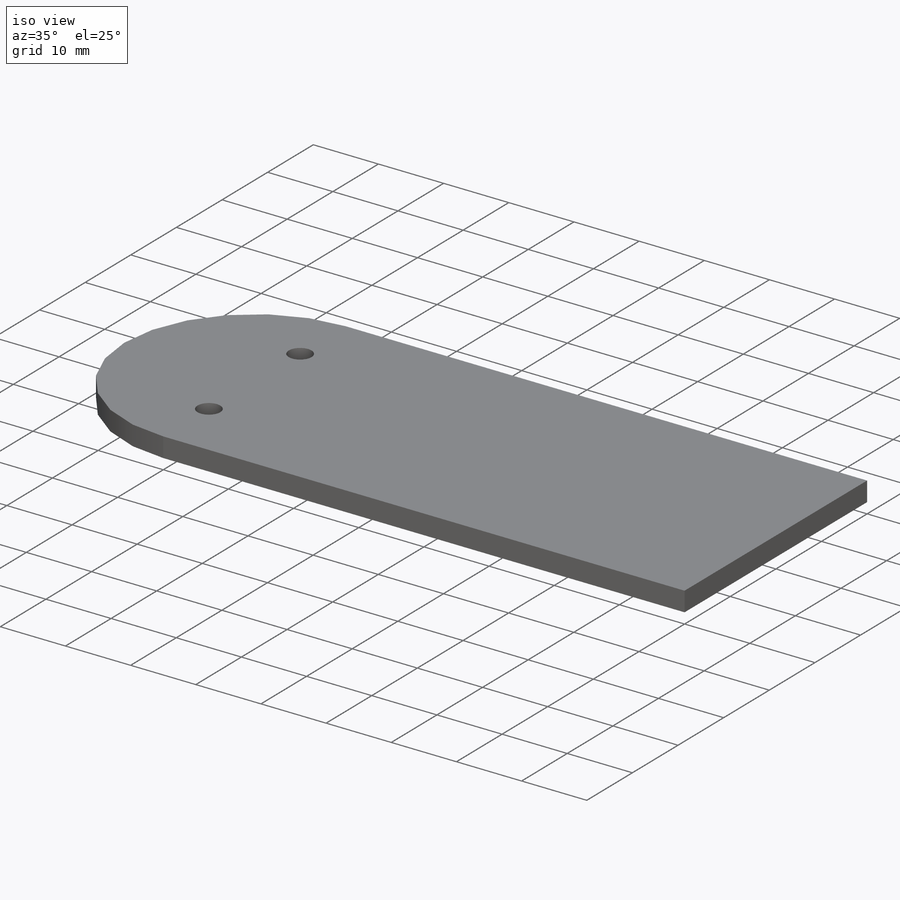
[diagram: iso view]
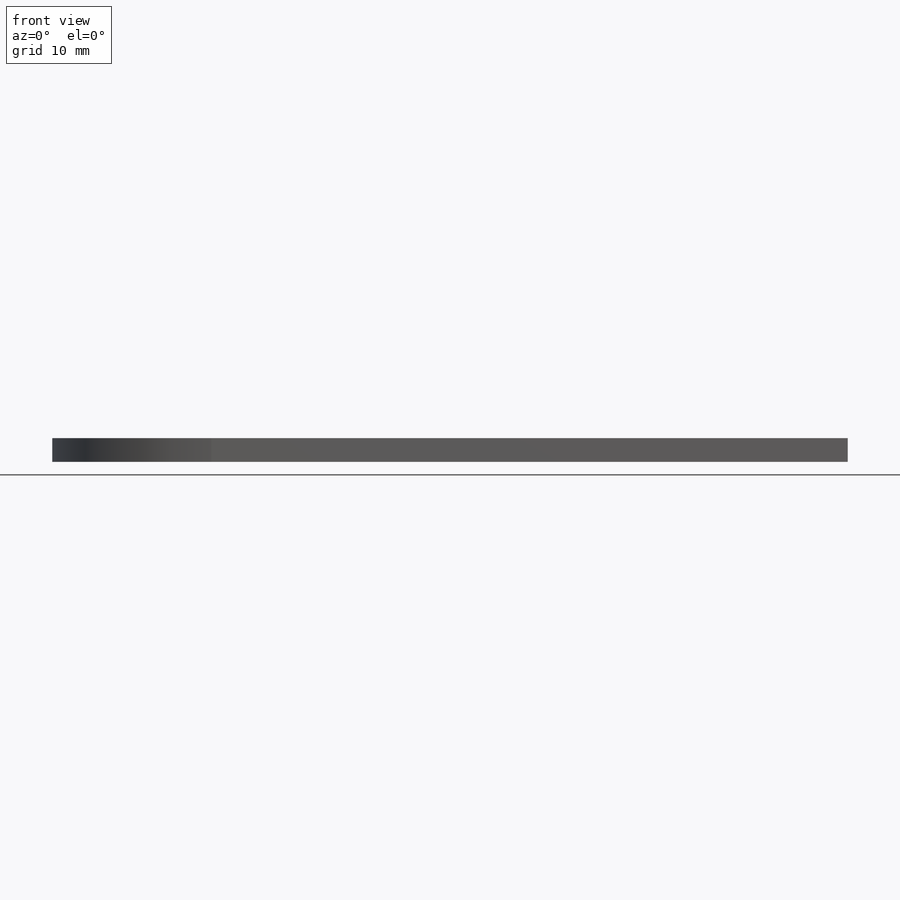
[diagram: front view]
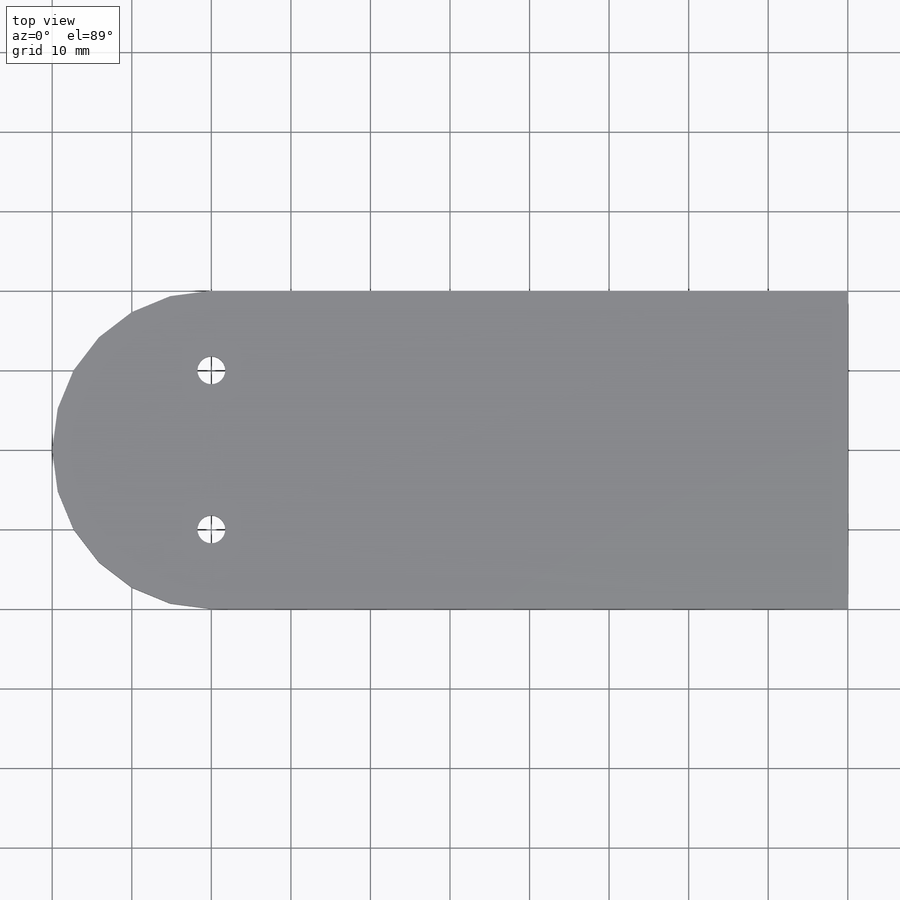
[diagram: top view]
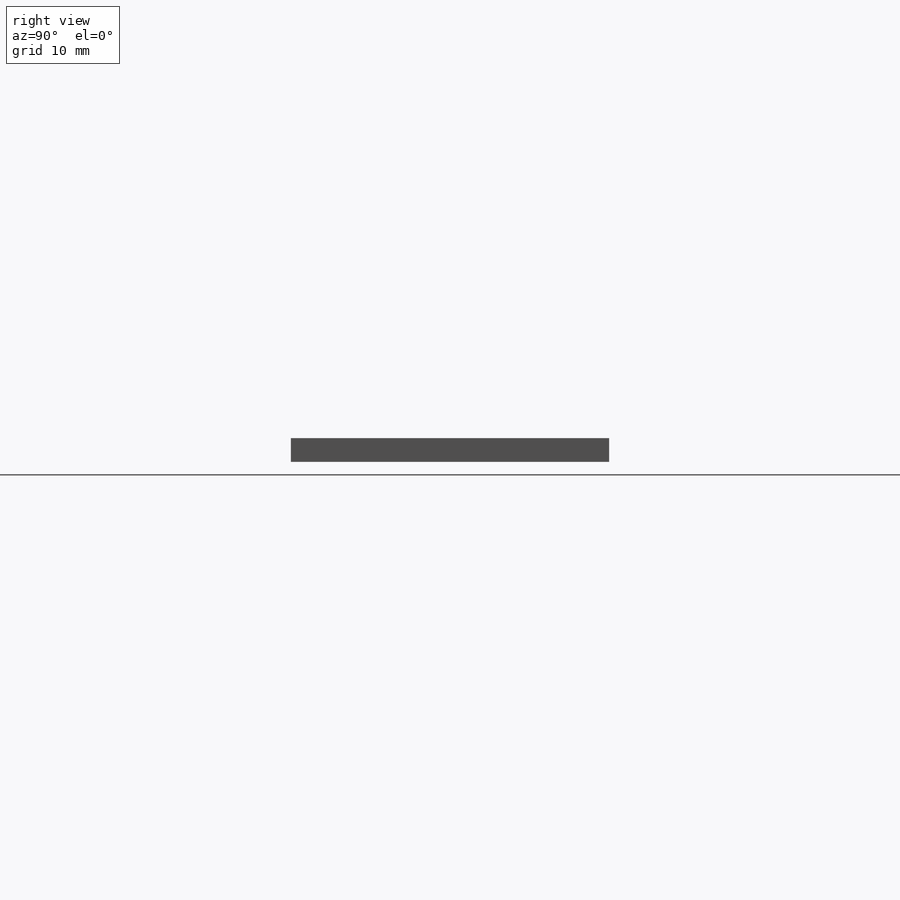
[diagram: right view]
SOLIDWORKS PART (.sldprt)
format: sldprt  version: not decoded by parser v0  size: 228,352 bytes
history: native  units: mm
features: sketch x7, cut_extrude x4, material x1, extrude x1, fillet x1 (+11 scaffold rows collapsed)
feature tree (25):
  scaffold x11  (default folders/planes/origin — collapsed)
  material  "Material <not specified>"
  sketch  "Sketch1"  dims[D3=40.0mm D4=40.0mm D1=100.0mm D2=40.0mm]
  extrude  "Boss-Extrude1"  Depth=3mm
  sketch  "Sketch2"  dims[D1=25.0mm D2=20.0mm D3=20.0mm]
  sketch  "Sketch3"  dims[D1=3.5mm D2=3.5mm D3=10.0mm D4=10.0mm D5=20.0mm D6=20.0mm]
  cut_extrude  "Cut-Extrude1"  [1 undecoded]
  sketch  "Sketch4"  dims[c1.D1=20.0mm c1.D2=~4.133581mm c2.D2=~86.058948deg c3.D2=~4.133581mm c4.D2=90.0deg c5.D2=6.0mm]
  cut_extrude  "Cut-Extrude2"  [1 undecoded]
  fillet  "Fillet1"  Radius=2mm
  sketch  "Sketch5"
  cut_extrude  "Cut-Extrude3"  [1 undecoded]
  sketch  "Sketch6"  dims[D1=40.0mm]
  sketch  "Sketch7"  dims[D1=3.5mm D2=3.5mm D3=8.0mm D4=8.0mm D5=8.0mm D6=8.0mm]
  cut_extrude  "Cut-Extrude4"  [1 undecoded]
decode coverage: 8 of 13 modeling features carry decoded parameters
note: ~ marks probable driven/reference dimensions
note: 4 parameter values undecoded
summary: no parameter record found for 4 features
note: suppression state not decoded; provenance and decode notes live in map.json
